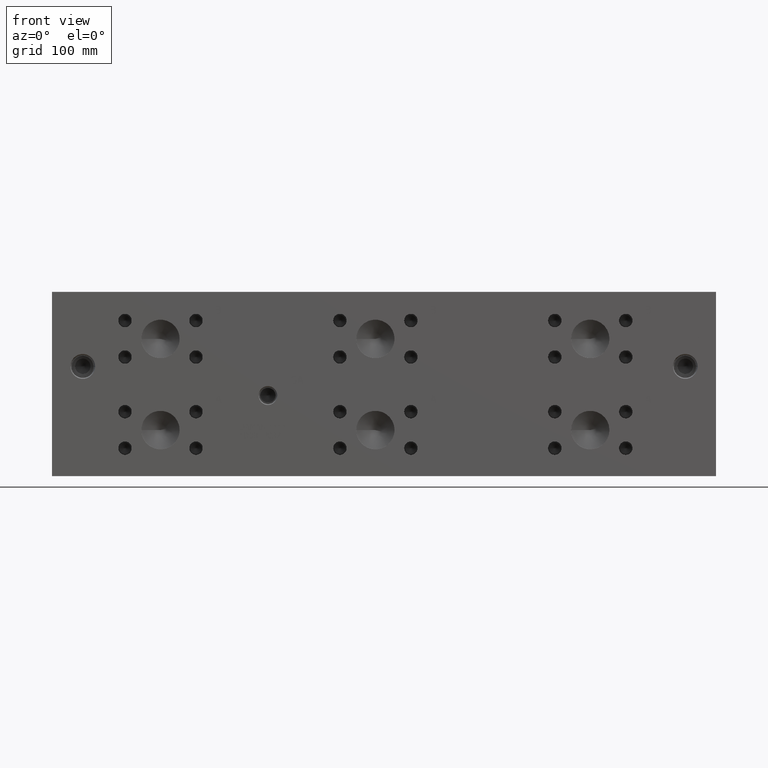
[diagram: clean part render]
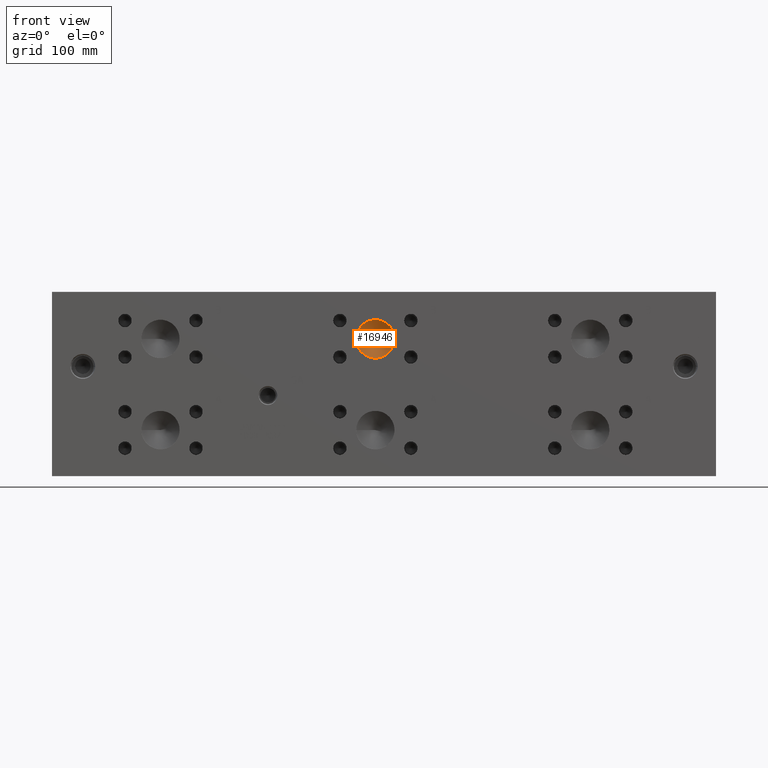
[diagram: same view with one face highlighted and labeled with its STEP entity id]
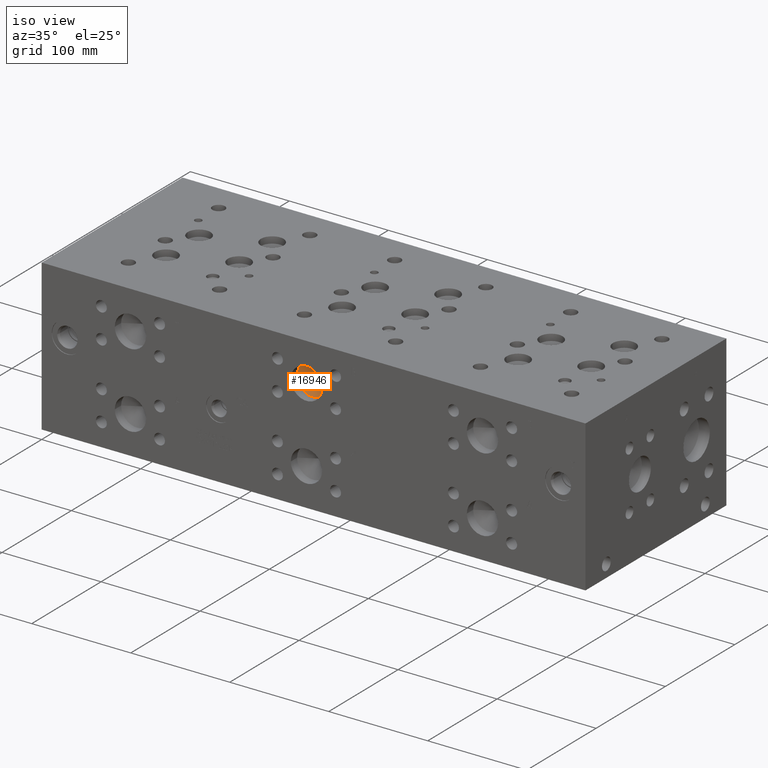
[diagram: same view with one face highlighted and labeled with its STEP entity id]
A machine part, front view. The second image highlights one B-rep face of the part: STEP entity #16946.
A second angle (iso view) of the same face is appended — the face is thin or edge-on in the first view.
In plain terms, the highlighted conical surface has half-angle 60 deg.
Its self-contained STEP definition (entity closure, byte-faithful):
#256=CONICAL_SURFACE('',#18161,7.9375,1.0471975511966);
#760=CIRCLE('',#18162,15.875);
#761=CIRCLE('',#18163,15.875);
#2347=FACE_OUTER_BOUND('',#3390,.T.);
#3390=EDGE_LOOP('',(#14874,#14875,#14876,#14877));
#4907=LINE('',#29012,#6333);
#6333=VECTOR('',#21931,7.9375);
#8257=VERTEX_POINT('',#29008);
#8258=VERTEX_POINT('',#29009);
#8259=VERTEX_POINT('',#29011);
#10551=EDGE_CURVE('',#8257,#8258,#760,.T.);
#10552=EDGE_CURVE('',#8258,#8259,#4907,.T.);
#10553=EDGE_CURVE('',#8258,#8257,#761,.T.);
#14874=ORIENTED_EDGE('',*,*,#10551,.T.);
#14875=ORIENTED_EDGE('',*,*,#10552,.T.);
#14876=ORIENTED_EDGE('',*,*,#10552,.F.);
#14877=ORIENTED_EDGE('',*,*,#10553,.T.);
#16946=ADVANCED_FACE('',(#2347),#256,.F.);
#18161=AXIS2_PLACEMENT_3D('',#29007,#21927,#21928);
#18162=AXIS2_PLACEMENT_3D('',#29010,#21929,#21930);
#18163=AXIS2_PLACEMENT_3D('',#29013,#21932,#21933);
#21927=DIRECTION('center_axis',(0.,-1.,0.));
#21928=DIRECTION('ref_axis',(1.,0.,0.));
#21929=DIRECTION('center_axis',(0.,-1.,0.));
#21930=DIRECTION('ref_axis',(1.,0.,0.));
#21931=DIRECTION('',(0.866025403784439,0.5,1.06057523872491E-16));
#21932=DIRECTION('center_axis',(0.,-1.,0.));
#21933=DIRECTION('ref_axis',(1.,0.,0.));
#29007=CARTESIAN_POINT('Origin',(267.4874,13.7481577616927,113.5126));
#29008=CARTESIAN_POINT('',(283.3624,9.16544,113.5126));
#29009=CARTESIAN_POINT('',(251.6124,9.16544,113.5126));
#29010=CARTESIAN_POINT('Origin',(267.4874,9.16544,113.5126));
#29011=CARTESIAN_POINT('',(267.4874,18.3308755233853,113.5126));
#29012=CARTESIAN_POINT('',(259.5499,13.7481577616927,113.5126));
#29013=CARTESIAN_POINT('Origin',(267.4874,9.16544,113.5126));